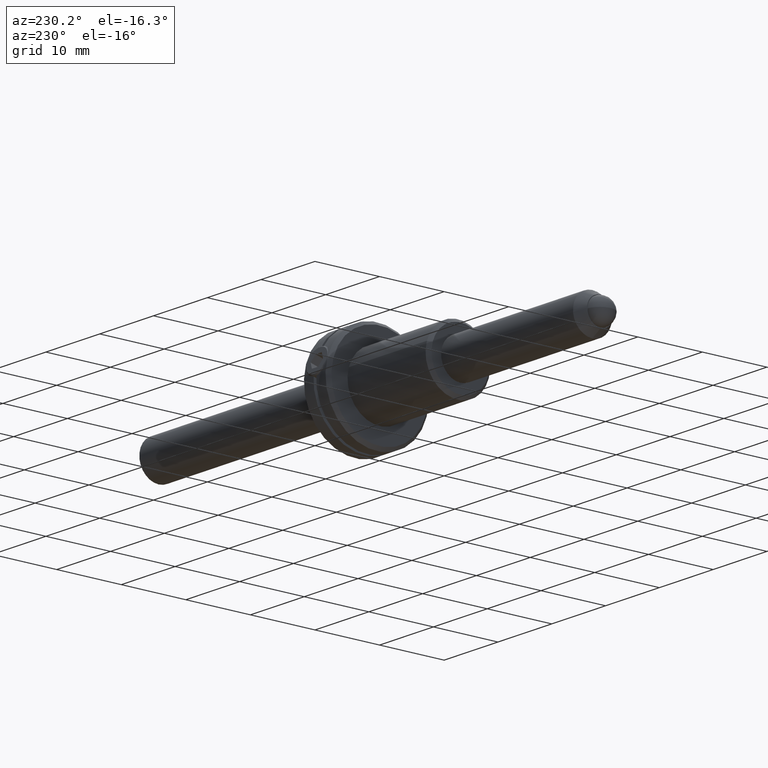
[diagram: clean part render]
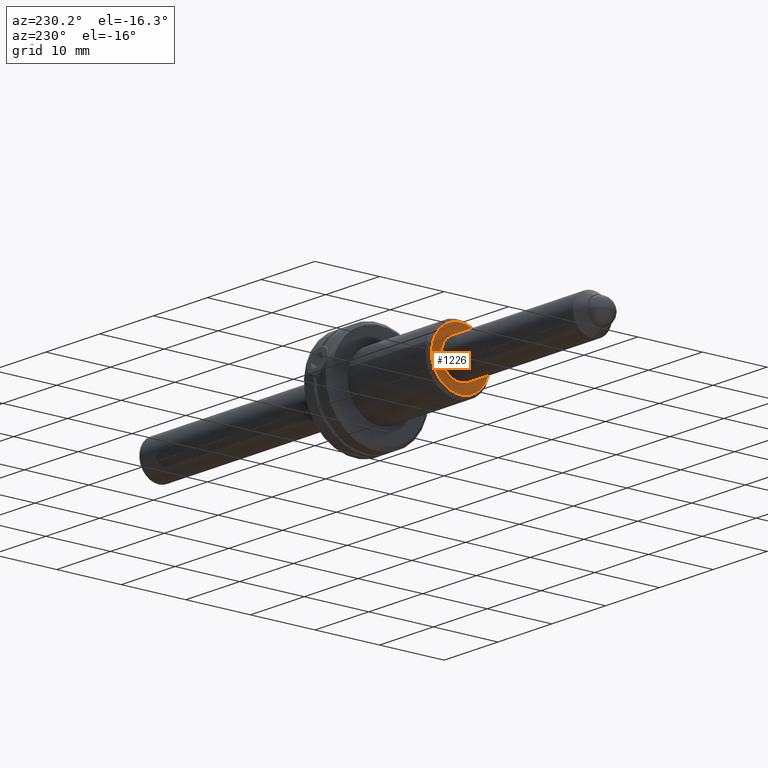
[diagram: same view with one face highlighted and labeled with its STEP entity id]
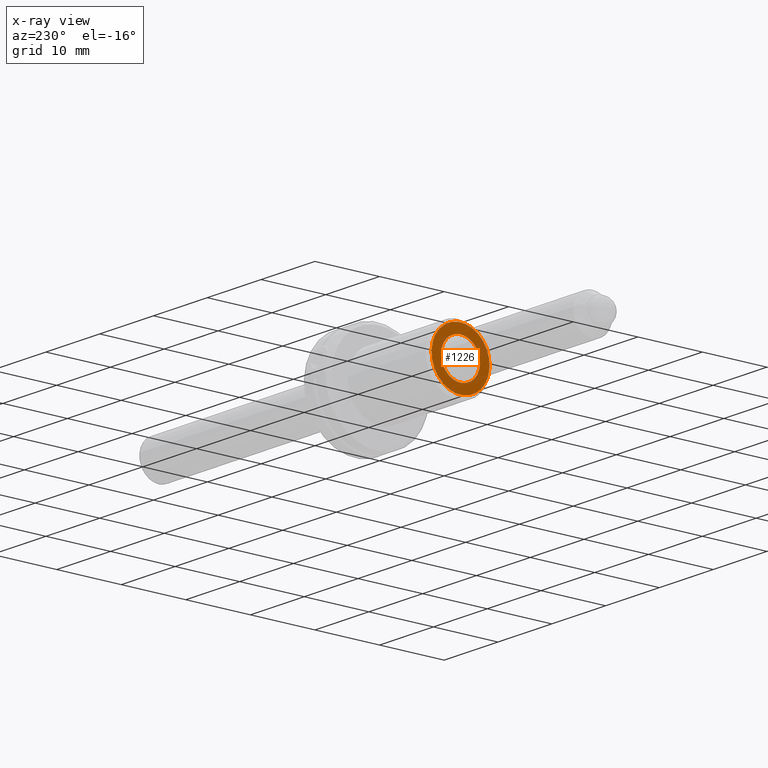
[diagram: x-ray of the same camera — body ghosted, the highlighted face saturated]
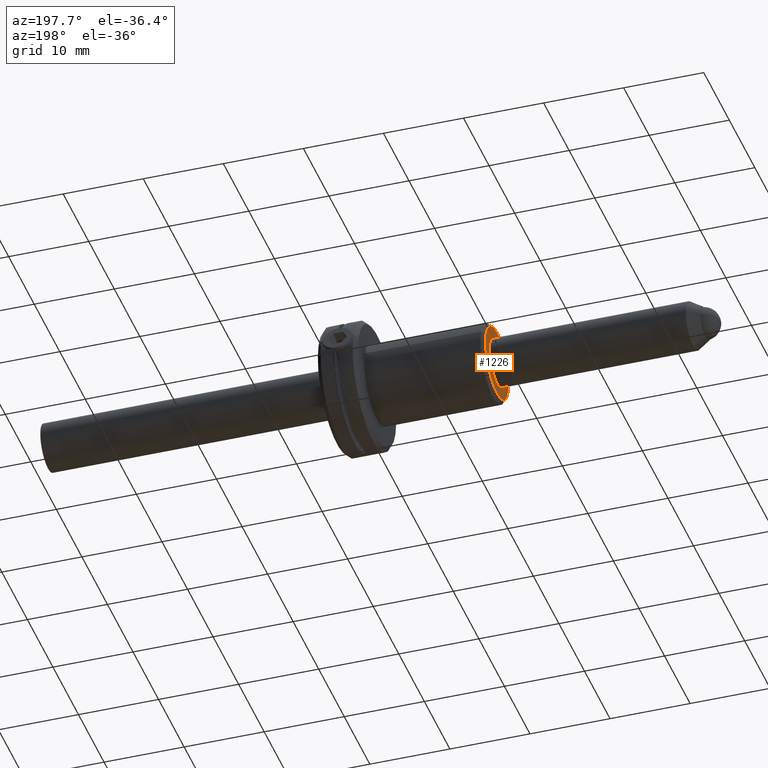
[diagram: same view with one face highlighted and labeled with its STEP entity id]
A machine part, auxiliary view. The second image highlights one B-rep face of the part: STEP entity #1226.
The next image is the same camera in x-ray: the body ghosted, the highlighted face saturated — about 6% of this face is hidden behind the body in this view.
A second angle (auxiliary view) of the same face is appended — the face is thin or edge-on in the first view.
In plain terms, the highlighted planar face has unit normal (1, 0, -0).
Its self-contained STEP definition (entity closure, byte-faithful):
#38 = CARTESIAN_POINT ( 'NONE',  ( -15.05000000000000071, -5.426736848533666609E-16, -7.892009290543411720E-16 ) ) ;
#71 = DIRECTION ( 'NONE',  ( 0.000000000000000000, 0.9592565708293433469, 0.2825364247680801078 ) ) ;
#93 = VERTEX_POINT ( 'NONE', #1698 ) ;
#147 = AXIS2_PLACEMENT_3D ( 'NONE', #1129, #1741, #71 ) ;
#172 = DIRECTION ( 'NONE',  ( 1.000000000000000000, 0.000000000000000000, 0.000000000000000000 ) ) ;
#218 = FACE_BOUND ( 'NONE', #1670, .T. ) ;
#228 = EDGE_CURVE ( 'NONE', #93, #1754, #391, .T. ) ;
#238 = CARTESIAN_POINT ( 'NONE',  ( -15.05000000000000071, -2.877769712488027043, -0.8476092743042400457 ) ) ;
#298 = CIRCLE ( 'NONE', #1023, 2.999999999999996447 ) ;
#351 = ORIENTED_EDGE ( 'NONE', *, *, #1223, .T. ) ;
#391 = CIRCLE ( 'NONE', #1555, 2.999999999999996447 ) ;
#395 = DIRECTION ( 'NONE',  ( 0.000000000000000000, 0.9592565708293433469, 0.2825364247680801078 ) ) ;
#498 = CARTESIAN_POINT ( 'NONE',  ( -15.05000000000000071, -5.426736848533666609E-16, -7.892009290543411720E-16 ) ) ;
#553 = DIRECTION ( 'NONE',  ( -1.000000000000000000, -0.000000000000000000, -0.000000000000000000 ) ) ;
#653 = DIRECTION ( 'NONE',  ( 0.000000000000000000, 0.9592565708293433469, 0.2825364247680801078 ) ) ;
#787 = ORIENTED_EDGE ( 'NONE', *, *, #1256, .T. ) ;
#799 = DIRECTION ( 'NONE',  ( 1.000000000000000000, 0.000000000000000000, 0.000000000000000000 ) ) ;
#949 = CARTESIAN_POINT ( 'NONE',  ( -15.05000000000000071, 4.316654568732045227, 1.271413911456359846 ) ) ;
#990 = DIRECTION ( 'NONE',  ( -1.000000000000000000, -0.000000000000000000, -0.000000000000000000 ) ) ;
#1023 = AXIS2_PLACEMENT_3D ( 'NONE', #1888, #172, #1587 ) ;
#1110 = AXIS2_PLACEMENT_3D ( 'NONE', #498, #990, #653 ) ;
#1129 = CARTESIAN_POINT ( 'NONE',  ( -15.05000000000000071, -1.412682123840401038, 4.796282854146715735 ) ) ;
#1140 = ORIENTED_EDGE ( 'NONE', *, *, #228, .T. ) ;
#1223 = EDGE_CURVE ( 'NONE', #1730, #1274, #1722, .T. ) ;
#1226 = ADVANCED_FACE ( 'NONE', ( #218, #1451 ), #1894, .F. ) ;
#1256 = EDGE_CURVE ( 'NONE', #1754, #93, #298, .T. ) ;
#1274 = VERTEX_POINT ( 'NONE', #1444 ) ;
#1276 = AXIS2_PLACEMENT_3D ( 'NONE', #1955, #553, #395 ) ;
#1444 = CARTESIAN_POINT ( 'NONE',  ( -15.05000000000000071, -4.316654568732047004, -1.271413911456361179 ) ) ;
#1448 = EDGE_LOOP ( 'NONE', ( #351, #1896 ) ) ;
#1451 = FACE_OUTER_BOUND ( 'NONE', #1448, .T. ) ;
#1555 = AXIS2_PLACEMENT_3D ( 'NONE', #38, #799, #1734 ) ;
#1587 = DIRECTION ( 'NONE',  ( 0.000000000000000000, 0.9592565708293433469, 0.2825364247680801078 ) ) ;
#1670 = EDGE_LOOP ( 'NONE', ( #787, #1140 ) ) ;
#1698 = CARTESIAN_POINT ( 'NONE',  ( -15.05000000000000071, 2.877769712488026155, 0.8476092743042388244 ) ) ;
#1722 = CIRCLE ( 'NONE', #1110, 4.500000000000000888 ) ;
#1730 = VERTEX_POINT ( 'NONE', #949 ) ;
#1734 = DIRECTION ( 'NONE',  ( 0.000000000000000000, 0.9592565708293433469, 0.2825364247680801078 ) ) ;
#1741 = DIRECTION ( 'NONE',  ( 1.000000000000000000, 0.000000000000000000, -0.000000000000000000 ) ) ;
#1754 = VERTEX_POINT ( 'NONE', #238 ) ;
#1758 = EDGE_CURVE ( 'NONE', #1274, #1730, #1884, .T. ) ;
#1884 = CIRCLE ( 'NONE', #1276, 4.500000000000000888 ) ;
#1888 = CARTESIAN_POINT ( 'NONE',  ( -15.05000000000000071, -5.426736848533666609E-16, -7.892009290543411720E-16 ) ) ;
#1894 = PLANE ( 'NONE',  #147 ) ;
#1896 = ORIENTED_EDGE ( 'NONE', *, *, #1758, .T. ) ;
#1955 = CARTESIAN_POINT ( 'NONE',  ( -15.05000000000000071, -5.426736848533666609E-16, -7.892009290543411720E-16 ) ) ;